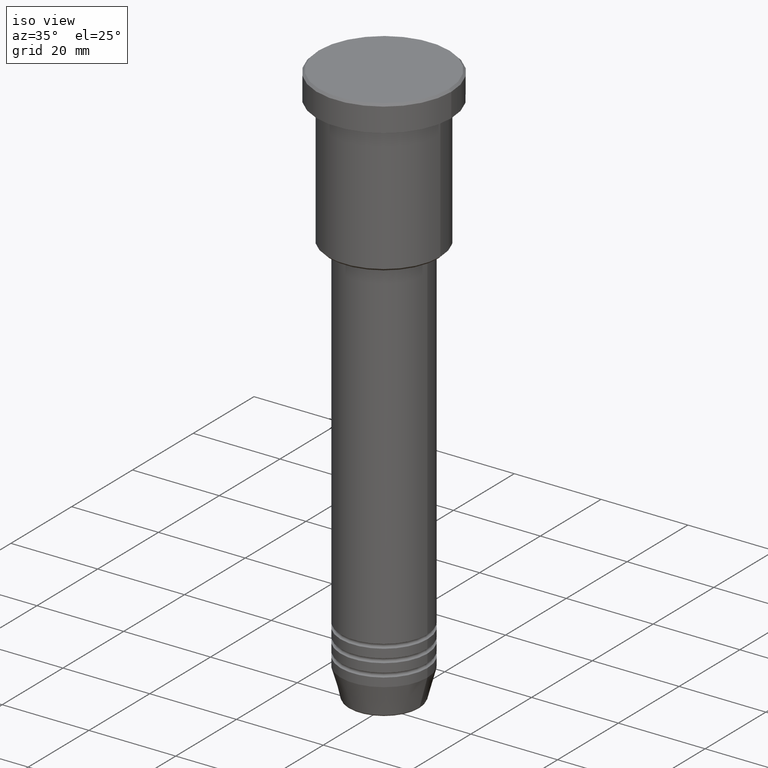
[diagram: clean part render]
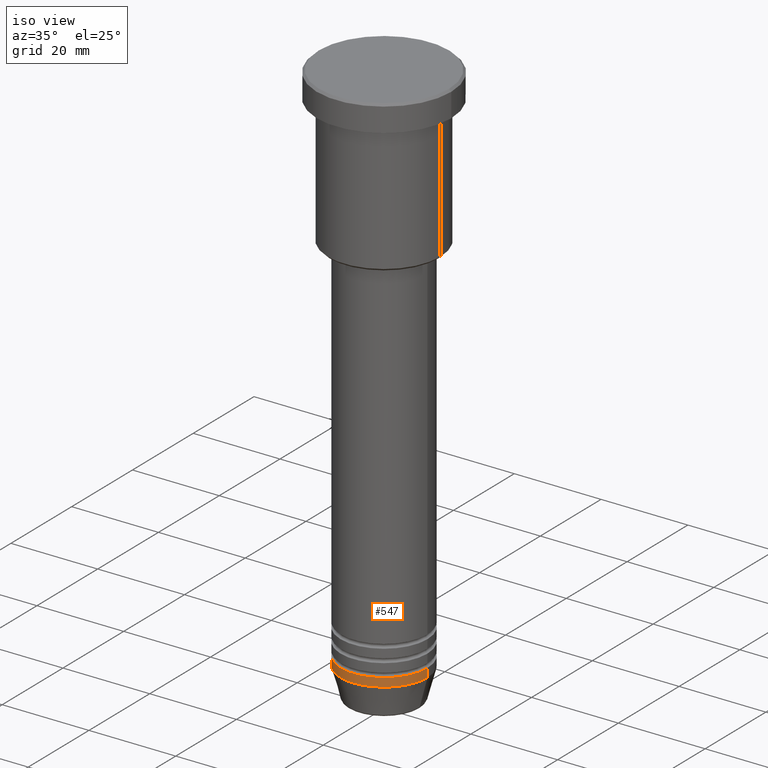
[diagram: same view with one face highlighted and labeled with its STEP entity id]
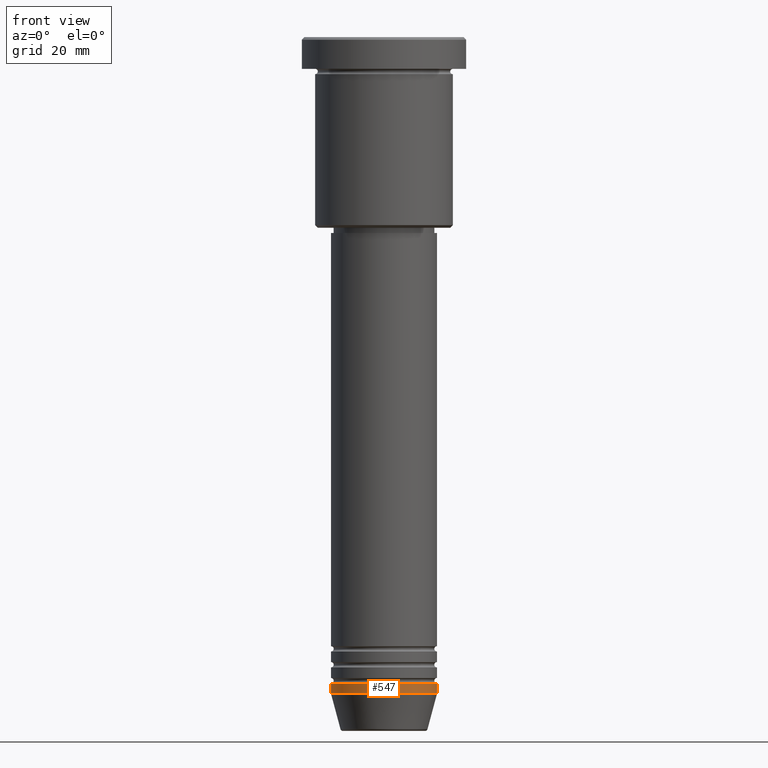
[diagram: same view with one face highlighted and labeled with its STEP entity id]
A machine part, iso view. The second image highlights one B-rep face of the part: STEP entity #547.
A second angle (front view) of the same face is appended — the face is thin or edge-on in the first view.
In plain terms, the highlighted cylindrical surface (partial cylindrical patch) has radius 10 mm, axis along (-0, -0, 1).
Its self-contained STEP definition (entity closure, byte-faithful):
#57 = VERTEX_POINT ( 'NONE', #1027 ) ;
#80 = CARTESIAN_POINT ( 'NONE',  ( -10.00000000000000000, 1.224646799147353256E-15, -124.0000000000000000 ) ) ;
#122 = ORIENTED_EDGE ( 'NONE', *, *, #610, .T. ) ;
#153 = EDGE_CURVE ( 'NONE', #658, #280, #438, .T. ) ;
#185 = CARTESIAN_POINT ( 'NONE',  ( -10.00000000000000000, 1.224646799147353256E-15, 0.000000000000000000 ) ) ;
#233 = CARTESIAN_POINT ( 'NONE',  ( 10.00000000000000000, 0.000000000000000000, 0.000000000000000000 ) ) ;
#280 = VERTEX_POINT ( 'NONE', #887 ) ;
#281 = LINE ( 'NONE', #185, #1145 ) ;
#319 = CARTESIAN_POINT ( 'NONE',  ( 0.000000000000000000, 0.000000000000000000, -124.0000000000000000 ) ) ;
#326 = CYLINDRICAL_SURFACE ( 'NONE', #386, 10.00000000000000000 ) ;
#349 = ORIENTED_EDGE ( 'NONE', *, *, #153, .T. ) ;
#386 = AXIS2_PLACEMENT_3D ( 'NONE', #953, #882, #507 ) ;
#395 = EDGE_LOOP ( 'NONE', ( #982, #349, #122, #456 ) ) ;
#425 = VECTOR ( 'NONE', #603, 1000.000000000000000 ) ;
#430 = DIRECTION ( 'NONE',  ( -0.000000000000000000, -0.000000000000000000, 1.000000000000000000 ) ) ;
#438 = CIRCLE ( 'NONE', #1177, 10.00000000000000000 ) ;
#456 = ORIENTED_EDGE ( 'NONE', *, *, #552, .F. ) ;
#507 = DIRECTION ( 'NONE',  ( 1.000000000000000000, 0.000000000000000000, 0.000000000000000000 ) ) ;
#522 = AXIS2_PLACEMENT_3D ( 'NONE', #867, #690, #684 ) ;
#547 = ADVANCED_FACE ( 'NONE', ( #1132 ), #326, .T. ) ;
#552 = EDGE_CURVE ( 'NONE', #828, #57, #564, .T. ) ;
#560 = DIRECTION ( 'NONE',  ( -0.000000000000000000, -0.000000000000000000, 1.000000000000000000 ) ) ;
#564 = CIRCLE ( 'NONE', #522, 10.00000000000000000 ) ;
#603 = DIRECTION ( 'NONE',  ( -0.000000000000000000, -0.000000000000000000, 1.000000000000000000 ) ) ;
#610 = EDGE_CURVE ( 'NONE', #280, #57, #771, .T. ) ;
#658 = VERTEX_POINT ( 'NONE', #80 ) ;
#684 = DIRECTION ( 'NONE',  ( 1.000000000000000000, 0.000000000000000000, 0.000000000000000000 ) ) ;
#690 = DIRECTION ( 'NONE',  ( -0.000000000000000000, -0.000000000000000000, 1.000000000000000000 ) ) ;
#771 = LINE ( 'NONE', #233, #425 ) ;
#828 = VERTEX_POINT ( 'NONE', #1120 ) ;
#846 = EDGE_CURVE ( 'NONE', #658, #828, #281, .T. ) ;
#867 = CARTESIAN_POINT ( 'NONE',  ( 0.000000000000000000, 0.000000000000000000, -122.0000000000000000 ) ) ;
#882 = DIRECTION ( 'NONE',  ( -0.000000000000000000, -0.000000000000000000, 1.000000000000000000 ) ) ;
#887 = CARTESIAN_POINT ( 'NONE',  ( 10.00000000000000000, 0.000000000000000000, -124.0000000000000000 ) ) ;
#953 = CARTESIAN_POINT ( 'NONE',  ( 0.000000000000000000, 0.000000000000000000, 0.000000000000000000 ) ) ;
#972 = DIRECTION ( 'NONE',  ( 1.000000000000000000, 0.000000000000000000, 0.000000000000000000 ) ) ;
#982 = ORIENTED_EDGE ( 'NONE', *, *, #846, .F. ) ;
#1027 = CARTESIAN_POINT ( 'NONE',  ( 10.00000000000000000, 0.000000000000000000, -122.0000000000000000 ) ) ;
#1120 = CARTESIAN_POINT ( 'NONE',  ( -10.00000000000000000, 1.224646799147353256E-15, -122.0000000000000000 ) ) ;
#1132 = FACE_OUTER_BOUND ( 'NONE', #395, .T. ) ;
#1145 = VECTOR ( 'NONE', #560, 1000.000000000000000 ) ;
#1177 = AXIS2_PLACEMENT_3D ( 'NONE', #319, #430, #972 ) ;